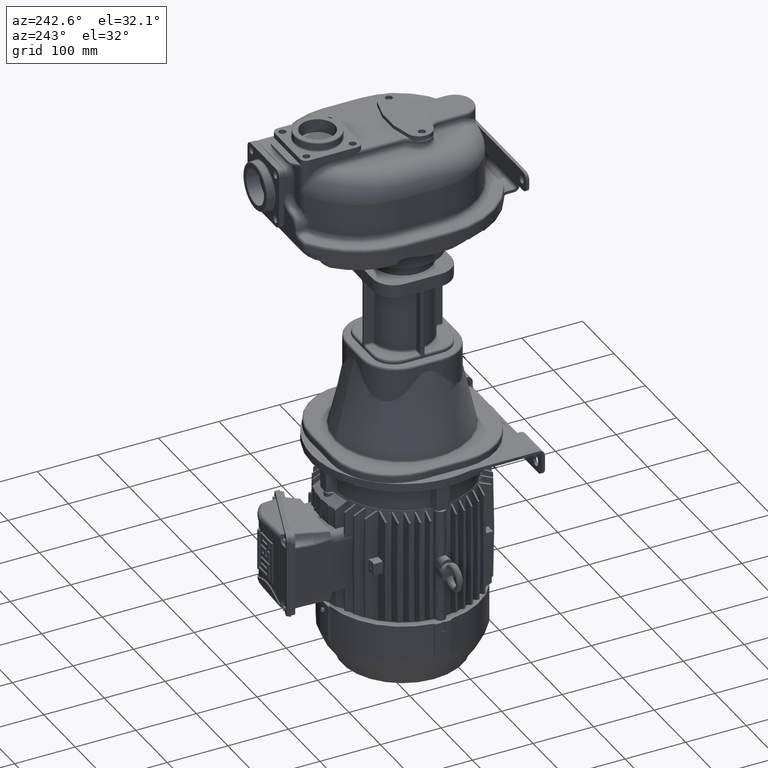
[diagram: clean part render]
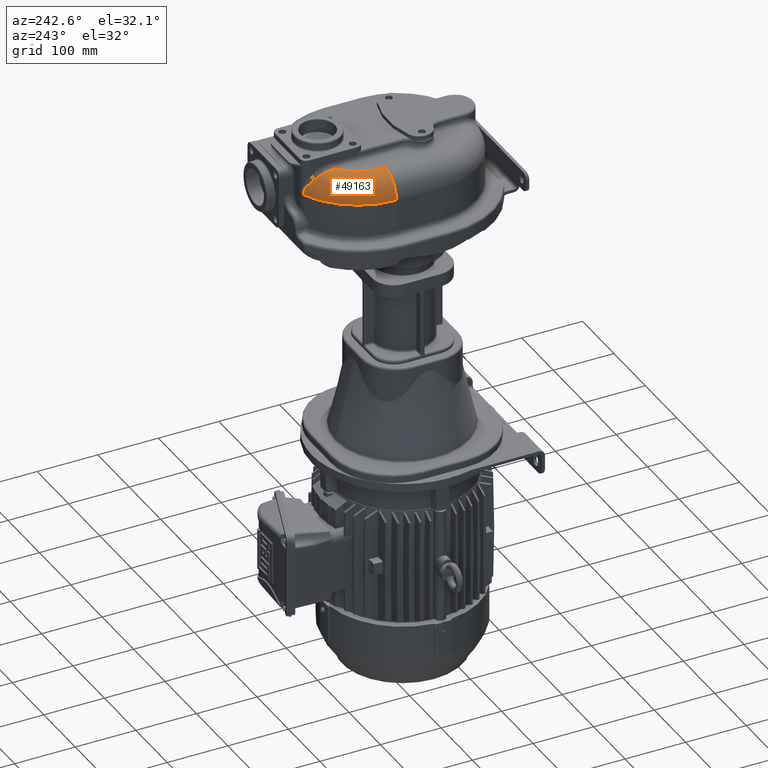
[diagram: same view with one face highlighted and labeled with its STEP entity id]
A machine part, auxiliary view. The second image highlights one B-rep face of the part: STEP entity #49163.
In plain terms, the highlighted toroidal blend (fillet) surface has major radius 88 mm and minor (blend) radius 36 mm.
Its self-contained STEP definition (entity closure, byte-faithful):
#259=CARTESIAN_POINT('',(1.E1,2.29E2,8.4E1));
#260=DIRECTION('',(0.E0,0.E0,1.E0));
#261=DIRECTION('',(-6.590909090875E-1,7.520632776291E-1,0.E0));
#262=AXIS2_PLACEMENT_3D('',#259,#260,#261);
#274=CARTESIAN_POINT('',(-3.819361152922E1,3.410981918799E2,5.977751003499E1));
#275=CARTESIAN_POINT('',(-3.835007681320E1,3.409715226163E2,5.993513843334E1));
#276=CARTESIAN_POINT('',(-3.866814086866E1,3.407064713995E2,6.026591526266E1));
#277=CARTESIAN_POINT('',(-3.915953601425E1,3.402702592612E2,6.081062552440E1));
#278=CARTESIAN_POINT('',(-3.965812525412E1,3.397972306030E2,6.139859896152E1));
#279=CARTESIAN_POINT('',(-4.015612767034E1,3.392908479289E2,6.202232440023E1));
#280=CARTESIAN_POINT('',(-4.064688495433E1,3.387546494378E2,6.267431930279E1));
#281=CARTESIAN_POINT('',(-4.112445106834E1,3.381926184980E2,6.334693825273E1));
#282=CARTESIAN_POINT('',(-4.158394505927E1,3.376087545337E2,6.403306022870E1));
#283=CARTESIAN_POINT('',(-4.202163500729E1,3.370067622149E2,6.472651172179E1));
#284=CARTESIAN_POINT('',(-4.243477370075E1,3.363900021393E2,6.542209546772E1));
#285=CARTESIAN_POINT('',(-4.282143409061E1,3.357614642557E2,6.611555158466E1));
#286=CARTESIAN_POINT('',(-4.318032149779E1,3.351238192795E2,6.680341476754E1));
#287=CARTESIAN_POINT('',(-4.351062847386E1,3.344794646823E2,6.748288141212E1));
#288=CARTESIAN_POINT('',(-4.381192142912E1,3.338305684045E2,6.815168853552E1));
#289=CARTESIAN_POINT('',(-4.408405541539E1,3.331791057237E2,6.880801186588E1));
#290=CARTESIAN_POINT('',(-4.432711219771E1,3.325268854641E2,6.945038638342E1));
#291=CARTESIAN_POINT('',(-4.454135431310E1,3.318755666602E2,7.007764578301E1));
#292=CARTESIAN_POINT('',(-4.472718799776E1,3.312266819741E2,7.068886456080E1));
#293=CARTESIAN_POINT('',(-4.488514367222E1,3.305816081440E2,7.128335448189E1));
#294=CARTESIAN_POINT('',(-4.501583452499E1,3.299416732449E2,7.186054406316E1));
#295=CARTESIAN_POINT('',(-4.511998069998E1,3.293078942626E2,7.242018837578E1));
#296=CARTESIAN_POINT('',(-4.519829705833E1,3.286816561180E2,7.296176135741E1));
#297=CARTESIAN_POINT('',(-4.523387643750E1,3.282694190707E2,7.331102751190E1));
#298=CARTESIAN_POINT('',(-4.524763848701E1,3.280647310802E2,7.348272831767E1));
#300=CARTESIAN_POINT('',(-4.524763848701E1,3.280647310802E2,7.348272831767E1));
#301=CARTESIAN_POINT('',(-4.526639480694E1,3.277857741609E2,7.371672852964E1));
#302=CARTESIAN_POINT('',(-4.530477837704E1,3.272181018118E2,7.417927485007E1));
#303=CARTESIAN_POINT('',(-4.536500220788E1,3.263378191771E2,7.485559692207E1));
#304=CARTESIAN_POINT('',(-4.542797765947E1,3.254284301621E2,7.551395370037E1));
#305=CARTESIAN_POINT('',(-4.549379517644E1,3.244898147971E2,7.615367238188E1));
#306=CARTESIAN_POINT('',(-4.556255877885E1,3.235217371925E2,7.677413827450E1));
#307=CARTESIAN_POINT('',(-4.563437727462E1,3.225239571322E2,7.737470213049E1));
#308=CARTESIAN_POINT('',(-4.570936847008E1,3.214961808119E2,7.795471203848E1));
#309=CARTESIAN_POINT('',(-4.578765868511E1,3.204380706664E2,7.851350015218E1));
#310=CARTESIAN_POINT('',(-4.586938405241E1,3.193492329725E2,7.905038454567E1));
#311=CARTESIAN_POINT('',(-4.595469140541E1,3.182292113278E2,7.956466578479E1));
#312=CARTESIAN_POINT('',(-4.604373948578E1,3.170774765811E2,8.005562458723E1));
#313=CARTESIAN_POINT('',(-4.613670029680E1,3.158934156735E2,8.052251858575E1));
#314=CARTESIAN_POINT('',(-4.623376069507E1,3.146763182531E2,8.096457861390E1));
#315=CARTESIAN_POINT('',(-4.633512426733E1,3.134253607948E2,8.138100424247E1));
#316=CARTESIAN_POINT('',(-4.644101352267E1,3.121395875539E2,8.177095842985E1));
#317=CARTESIAN_POINT('',(-4.655167262244E1,3.108178876937E2,8.213356105214E1));
#318=CARTESIAN_POINT('',(-4.666737051829E1,3.094589665413E2,8.246788118150E1));
#319=CARTESIAN_POINT('',(-4.678840464574E1,3.080613131814E2,8.277292731254E1));
#320=CARTESIAN_POINT('',(-4.691510647418E1,3.066231496697E2,8.304763614780E1));
#321=CARTESIAN_POINT('',(-4.704784475447E1,3.051424052068E2,8.329085564860E1));
#322=CARTESIAN_POINT('',(-4.718704237476E1,3.036165494010E2,8.350133321627E1));
#323=CARTESIAN_POINT('',(-4.733315419158E1,3.020428336799E2,8.367767147733E1));
#324=CARTESIAN_POINT('',(-4.748678291133E1,3.004171052057E2,8.381835284207E1));
#325=CARTESIAN_POINT('',(-4.764837223103E1,2.987369726690E2,8.392155847165E1));
#326=CARTESIAN_POINT('',(-4.781919615191E1,2.969917212399E2,8.398543981054E1));
#327=CARTESIAN_POINT('',(-4.793876730525E1,2.957911367787E2,8.399999997578E1));
#328=CARTESIAN_POINT('',(-4.8E1,2.951815684312E2,8.4E1));
#340=CARTESIAN_POINT('',(-3.883242419189E1,3.429797979791E2,4.8E1));
#341=CARTESIAN_POINT('',(-3.883242417646E1,3.429797979455E2,4.833321516259E1));
#342=CARTESIAN_POINT('',(-3.882944821650E1,3.429710061563E2,4.899965573662E1));
#343=CARTESIAN_POINT('',(-3.881605781737E1,3.429314519827E2,4.999856736957E1));
#344=CARTESIAN_POINT('',(-3.879374745180E1,3.428655587827E2,5.099598700791E1));
#345=CARTESIAN_POINT('',(-3.876252858830E1,3.427733779538E2,5.199111938096E1));
#346=CARTESIAN_POINT('',(-3.872241801666E1,3.426549808173E2,5.298320148839E1));
#347=CARTESIAN_POINT('',(-3.867343662163E1,3.425104584199E2,5.397147576002E1));
#348=CARTESIAN_POINT('',(-3.861561028365E1,3.423399221803E2,5.495518550641E1));
#349=CARTESIAN_POINT('',(-3.854896949278E1,3.421435034827E2,5.593357808567E1));
#350=CARTESIAN_POINT('',(-3.847354956813E1,3.419213541131E2,5.690590308617E1));
#351=CARTESIAN_POINT('',(-3.838939047097E1,3.416736447074E2,5.787141804703E1));
#352=CARTESIAN_POINT('',(-3.829653741737E1,3.414005701257E2,5.882937062582E1));
#353=CARTESIAN_POINT('',(-3.822887513362E1,3.412017528780E2,5.946246784783E1));
#354=CARTESIAN_POINT('',(-3.819361152922E1,3.410981918799E2,5.977751003499E1));
#469=CARTESIAN_POINT('',(1.E1,2.29E2,4.8E1));
#470=DIRECTION('',(0.E0,0.E0,1.E0));
#471=DIRECTION('',(-3.938098725176E-1,9.191919191919E-1,0.E0));
#472=AXIS2_PLACEMENT_3D('',#469,#470,#471);
#606=CARTESIAN_POINT('',(-7.8E1,2.29E2,4.8E1));
#607=DIRECTION('',(0.E0,-1.E0,0.E0));
#608=DIRECTION('',(0.E0,0.E0,1.E0));
#609=AXIS2_PLACEMENT_3D('',#606,#607,#608);
#40076=CARTESIAN_POINT('',(-7.8E1,2.29E2,8.4E1));
#40078=VERTEX_POINT('',#40076);
#40080=CARTESIAN_POINT('',(-1.14E2,2.29E2,4.8E1));
#40081=VERTEX_POINT('',#40080);
#40082=CARTESIAN_POINT('',(-3.883242419218E1,3.429797979798E2,4.8E1));
#40083=VERTEX_POINT('',#40082);
#40087=VERTEX_POINT('',#274);
#40088=VERTEX_POINT('',#298);
#40091=VERTEX_POINT('',#328);
#49146=CARTESIAN_POINT('',(1.E1,2.29E2,4.8E1));
#49147=DIRECTION('',(0.E0,0.E0,-1.E0));
#49148=DIRECTION('',(8.362499795501E-1,-5.483484035743E-1,0.E0));
#49149=AXIS2_PLACEMENT_3D('',#49146,#49147,#49148);
#49150=TOROIDAL_SURFACE('',#49149,8.8E1,3.6E1);
#49152=ORIENTED_EDGE('',*,*,#49151,.T.);
#49153=ORIENTED_EDGE('',*,*,#49136,.T.);
#49154=ORIENTED_EDGE('',*,*,#48983,.T.);
#49156=ORIENTED_EDGE('',*,*,#49155,.T.);
#49158=ORIENTED_EDGE('',*,*,#49157,.F.);
#49160=ORIENTED_EDGE('',*,*,#49159,.T.);
#49161=EDGE_LOOP('',(#49152,#49153,#49154,#49156,#49158,#49160));
#49162=FACE_OUTER_BOUND('',#49161,.F.);
#49163=ADVANCED_FACE('',(#49162),#49150,.T.);
#263=CIRCLE('',#262,8.8E1);
#299=B_SPLINE_CURVE_WITH_KNOTS('',3,(#274,#275,#276,#277,#278,#279,#280,#281,
#282,#283,#284,#285,#286,#287,#288,#289,#290,#291,#292,#293,#294,#295,#296,#297,
#298),.UNSPECIFIED.,.F.,.F.,(4,1,1,1,1,1,1,1,1,1,1,1,1,1,1,1,1,1,1,1,1,1,4),(
0.E0,4.545454545455E-2,9.090909090909E-2,1.363636363636E-1,1.818181818182E-1,
2.272727272727E-1,2.727272727273E-1,3.181818181818E-1,3.636363636364E-1,
4.090909090909E-1,4.545454545455E-1,5.E-1,5.454545454545E-1,5.909090909091E-1,
6.363636363636E-1,6.818181818182E-1,7.272727272727E-1,7.727272727273E-1,
8.181818181818E-1,8.636363636364E-1,9.090909090909E-1,9.545454545455E-1,1.E0),
.UNSPECIFIED.);
#329=B_SPLINE_CURVE_WITH_KNOTS('',3,(#300,#301,#302,#303,#304,#305,#306,#307,
#308,#309,#310,#311,#312,#313,#314,#315,#316,#317,#318,#319,#320,#321,#322,#323,
#324,#325,#326,#327,#328),.UNSPECIFIED.,.F.,.F.,(4,1,1,1,1,1,1,1,1,1,1,1,1,1,1,
1,1,1,1,1,1,1,1,1,1,1,4),(0.E0,3.846153846154E-2,7.692307692308E-2,
1.153846153846E-1,1.538461538462E-1,1.923076923077E-1,2.307692307692E-1,
2.692307692308E-1,3.076923076923E-1,3.461538461538E-1,3.846153846154E-1,
4.230769230769E-1,4.615384615385E-1,5.E-1,5.384615384615E-1,5.769230769231E-1,
6.153846153846E-1,6.538461538462E-1,6.923076923077E-1,7.307692307692E-1,
7.692307692308E-1,8.076923076923E-1,8.461538461538E-1,8.846153846154E-1,
9.230769230769E-1,9.615384615385E-1,1.E0),.UNSPECIFIED.);
#355=B_SPLINE_CURVE_WITH_KNOTS('',3,(#340,#341,#342,#343,#344,#345,#346,#347,
#348,#349,#350,#351,#352,#353,#354),.UNSPECIFIED.,.F.,.F.,(4,1,1,1,1,1,1,1,1,1,
1,1,4),(0.E0,8.333333333333E-2,1.666666666667E-1,2.5E-1,3.333333333333E-1,
4.166666666667E-1,5.E-1,5.833333333333E-1,6.666666666667E-1,7.5E-1,
8.333333333333E-1,9.166666666667E-1,1.E0),.UNSPECIFIED.);
#473=CIRCLE('',#472,1.24E2);
#610=CIRCLE('',#609,3.6E1);
#48983=EDGE_CURVE('',#40091,#40078,#263,.T.);
#49136=EDGE_CURVE('',#40088,#40091,#329,.T.);
#49151=EDGE_CURVE('',#40087,#40088,#299,.T.);
#49155=EDGE_CURVE('',#40078,#40081,#610,.T.);
#49157=EDGE_CURVE('',#40083,#40081,#473,.T.);
#49159=EDGE_CURVE('',#40083,#40087,#355,.T.);